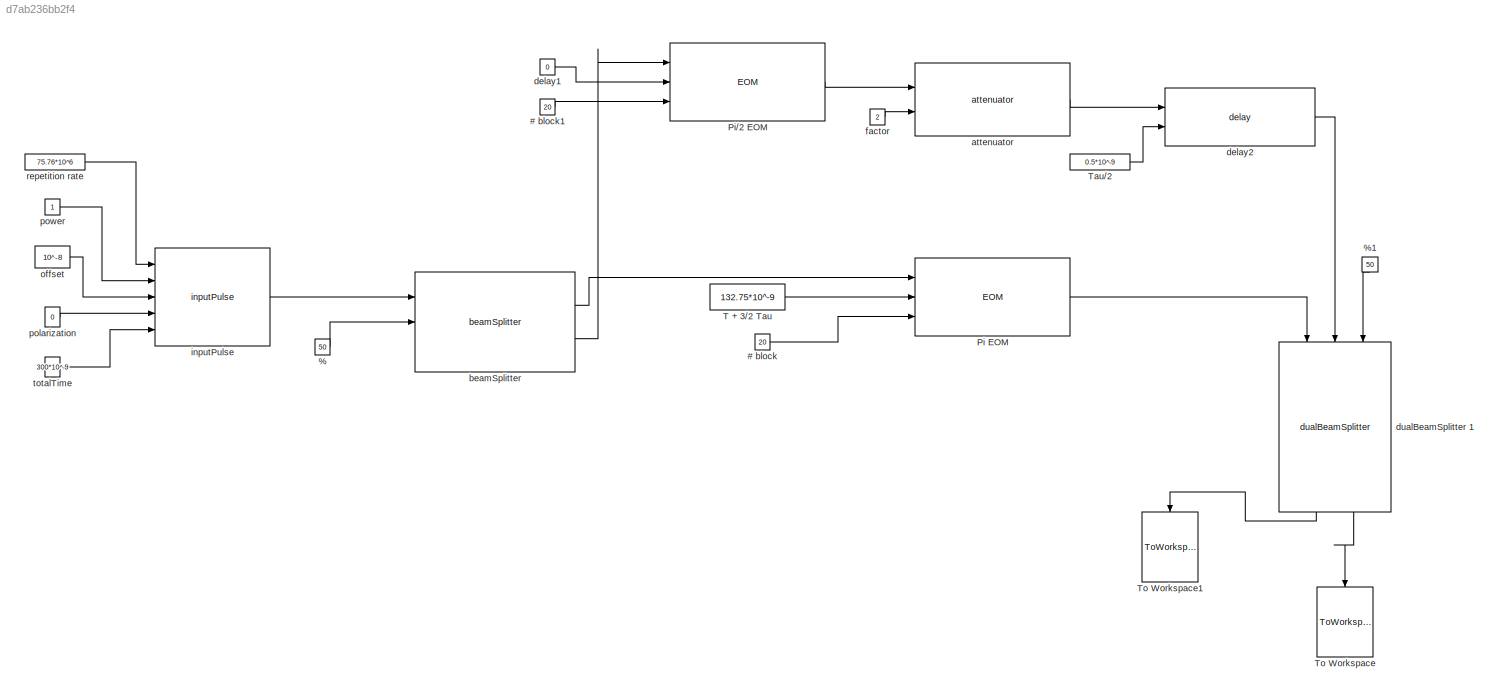
MODEL slx_d7ab236bb2f4
KIND model
BLOCK [Constant] # block
  Value = 20
BLOCK [Constant] # block1
  Value = 20
BLOCK [Constant] %
  Value = 50
BLOCK [Constant] %1
  Value = 50
BLOCK [Reference] Pi EOM  REF=opticalComponentLibrary/EOM
  Ports = [3, 1]
  SourceBlock = opticalComponentLibrary/EOM
  SourceType = SubSystem
BLOCK [Reference] Pi//2 EOM  REF=opticalComponentLibrary/EOM
  Ports = [3, 1]
  SourceBlock = opticalComponentLibrary/EOM
  SourceType = SubSystem
BLOCK [Constant] T + 3//2 Tau
  Value = 132.75*10^-9
BLOCK [Constant] Tau//2
  Value = 0.5*10^-9
BLOCK [ToWorkspace] To Workspace
  MaxDataPoints = inf
  Ports = [1]
  SampleTime = -1
  SaveFormat = Structure
  VariableName = simout
BLOCK [ToWorkspace] To Workspace1
  MaxDataPoints = inf
  Ports = [1]
  SampleTime = -1
  SaveFormat = Structure
  VariableName = simout1
BLOCK [Reference] attenuator  REF=opticalComponentLibrary/attenuator
  Ports = [2, 1]
  SourceBlock = opticalComponentLibrary/attenuator
  SourceType = SubSystem
BLOCK [Reference] beamSplitter  REF=opticalComponentLibrary/beamSplitter
  Ports = [3, 2]
  SourceBlock = opticalComponentLibrary/beamSplitter
  SourceType = SubSystem
BLOCK [Constant] delay1
  Value = 0
BLOCK [Reference] delay2  REF=opticalComponentLibrary/delay
  Ports = [2, 1]
  SourceBlock = opticalComponentLibrary/delay
  SourceType = SubSystem
BLOCK [Reference] dualBeamSplitter 1  REF=opticalComponentLibrary/dualBeamSplitter

  Ports = [3, 2]
  SourceBlock = opticalComponentLibrary/dualBeamSplitter
  SourceType = SubSystem
BLOCK [Constant] factor
  Value = 2
BLOCK [Reference] inputPulse  REF=opticalComponentLibrary/inputPulse
  Ports = [5, 1]
  SourceBlock = opticalComponentLibrary/inputPulse
  SourceType = SubSystem
BLOCK [Constant] offset
  Value = 10^-8
BLOCK [Constant] polarization
  Value = 0
BLOCK [Constant] power
BLOCK [Constant] repetition rate
  Value = 75.76*10^6
BLOCK [Constant] totalTime
  Value = 300*10^-9
LINE # block1:1 -> Pi//2 EOM:3
LINE # block:1 -> Pi EOM:3
LINE %1:1 -> dualBeamSplitter 1:3
LINE %:1 -> beamSplitter:2
LINE Pi EOM:1 -> dualBeamSplitter 1:1
LINE Pi//2 EOM:1 -> attenuator:1
LINE T + 3//2 Tau:1 -> Pi EOM:2
LINE Tau//2:1 -> delay2:2
LINE attenuator:1 -> delay2:1
LINE beamSplitter:1 -> Pi EOM:1
LINE beamSplitter:2 -> Pi//2 EOM:1
LINE delay1:1 -> Pi//2 EOM:2
LINE delay2:1 -> dualBeamSplitter 1:2
LINE dualBeamSplitter 1:1 -> To Workspace1:1
LINE dualBeamSplitter 1:2 -> To Workspace:1
LINE factor:1 -> attenuator:2
LINE inputPulse:1 -> beamSplitter:1
LINE offset:1 -> inputPulse:3
LINE polarization:1 -> inputPulse:4
LINE power:1 -> inputPulse:2
LINE repetition rate:1 -> inputPulse:1
LINE totalTime:1 -> inputPulse:5
